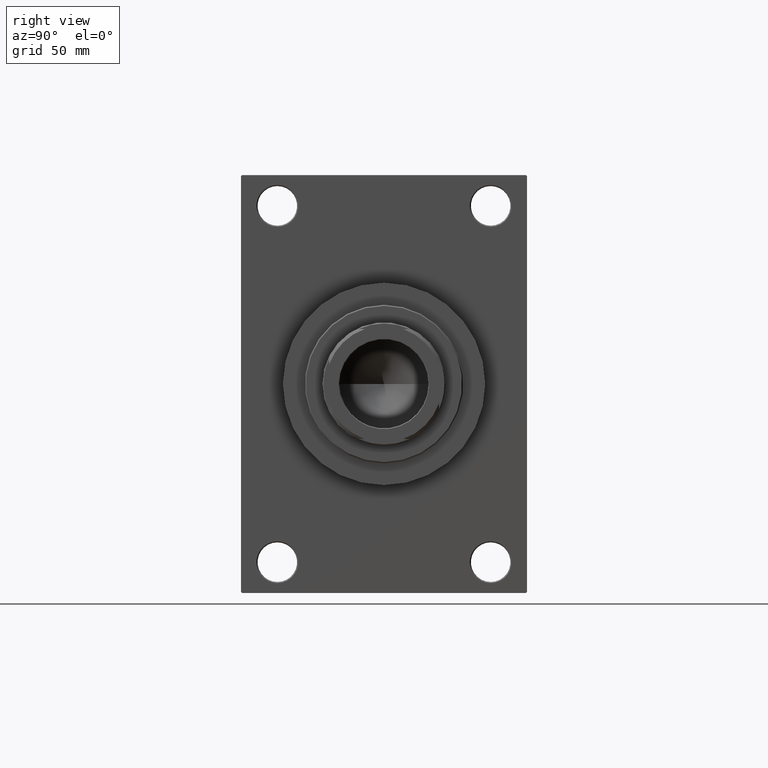
[diagram: clean part render]
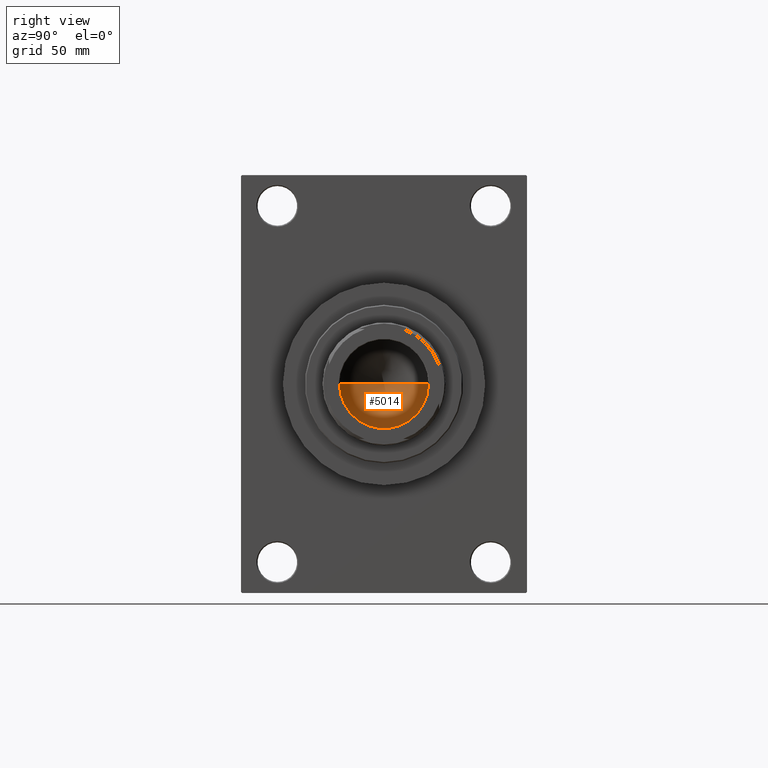
[diagram: same view with one face highlighted and labeled with its STEP entity id]
A machine part, right view. The second image highlights one B-rep face of the part: STEP entity #5014.
In plain terms, the highlighted conical surface has half-angle 59 deg.
Its self-contained STEP definition (entity closure, byte-faithful):
#448 = CARTESIAN_POINT ( 'NONE',  ( -20.24999999999998934, 2.479909768273389117E-15, 114.0000000000000142 ) ) ;
#547 = CONICAL_SURFACE ( 'NONE', #29092, 20.24999999999998934, 1.029744258676652979 ) ;
#913 = CARTESIAN_POINT ( 'NONE',  ( -1.584115414415908206E-14, 0.000000000000000000, 101.8325724646918928 ) ) ;
#1567 = CARTESIAN_POINT ( 'NONE',  ( 0.000000000000000000, 0.000000000000000000, 114.0000000000000142 ) ) ;
#2876 = LINE ( 'NONE', #36934, #38401 ) ;
#3654 = ORIENTED_EDGE ( 'NONE', *, *, #37809, .T. ) ;
#3714 = VECTOR ( 'NONE', #11308, 1000.000000000000000 ) ;
#5014 = ADVANCED_FACE ( 'NONE', ( #7804 ), #547, .F. ) ;
#7210 = LINE ( 'NONE', #29662, #3714 ) ;
#7804 = FACE_OUTER_BOUND ( 'NONE', #40037, .T. ) ;
#10619 = VERTEX_POINT ( 'NONE', #448 ) ;
#10713 = DIRECTION ( 'NONE',  ( 1.000000000000000000, 0.000000000000000000, 0.000000000000000000 ) ) ;
#11308 = DIRECTION ( 'NONE',  ( 0.8571673007021115565, 0.000000000000000000, 0.5150380749100554878 ) ) ;
#12789 = CIRCLE ( 'NONE', #46698, 20.24999999999998934 ) ;
#13132 = CARTESIAN_POINT ( 'NONE',  ( 20.24999999999998934, 0.000000000000000000, 114.0000000000000142 ) ) ;
#17229 = ORIENTED_EDGE ( 'NONE', *, *, #31046, .T. ) ;
#21958 = DIRECTION ( 'NONE',  ( -0.8571673007021115565, 1.049727191138617710E-16, 0.5150380749100554878 ) ) ;
#23395 = ORIENTED_EDGE ( 'NONE', *, *, #39805, .F. ) ;
#29092 = AXIS2_PLACEMENT_3D ( 'NONE', #37031, #43774, #10713 ) ;
#29662 = CARTESIAN_POINT ( 'NONE',  ( 20.24999999999998934, 0.000000000000000000, 114.0000000000000142 ) ) ;
#31046 = EDGE_CURVE ( 'NONE', #45238, #10619, #12789, .T. ) ;
#36934 = CARTESIAN_POINT ( 'NONE',  ( -20.24999999999998934, 2.479909768273389117E-15, 114.0000000000000142 ) ) ;
#37031 = CARTESIAN_POINT ( 'NONE',  ( 0.000000000000000000, 0.000000000000000000, 114.0000000000000142 ) ) ;
#37809 = EDGE_CURVE ( 'NONE', #47783, #45238, #7210, .T. ) ;
#38401 = VECTOR ( 'NONE', #21958, 1000.000000000000000 ) ;
#39805 = EDGE_CURVE ( 'NONE', #47783, #10619, #2876, .T. ) ;
#40037 = EDGE_LOOP ( 'NONE', ( #23395, #3654, #17229 ) ) ;
#43774 = DIRECTION ( 'NONE',  ( -0.000000000000000000, -0.000000000000000000, 1.000000000000000000 ) ) ;
#45238 = VERTEX_POINT ( 'NONE', #13132 ) ;
#45755 = DIRECTION ( 'NONE',  ( -0.000000000000000000, -0.000000000000000000, 1.000000000000000000 ) ) ;
#46698 = AXIS2_PLACEMENT_3D ( 'NONE', #1567, #45755, #46944 ) ;
#46944 = DIRECTION ( 'NONE',  ( 1.000000000000000000, 0.000000000000000000, 0.000000000000000000 ) ) ;
#47783 = VERTEX_POINT ( 'NONE', #913 ) ;